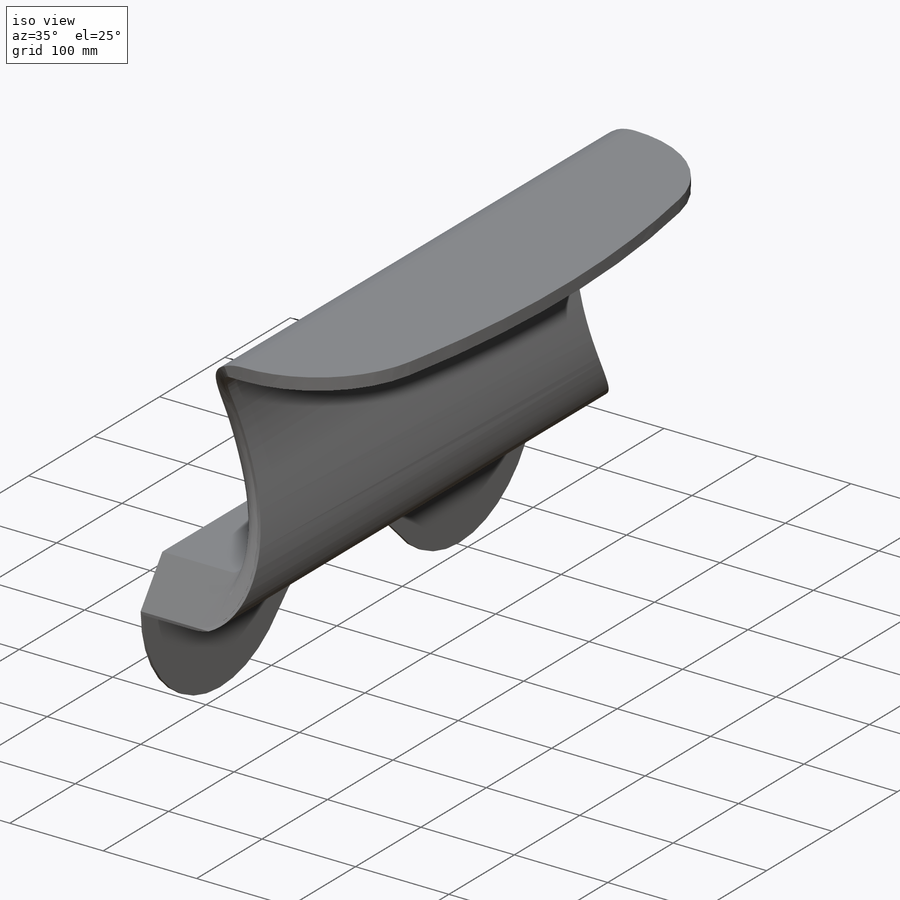
[diagram: iso view]
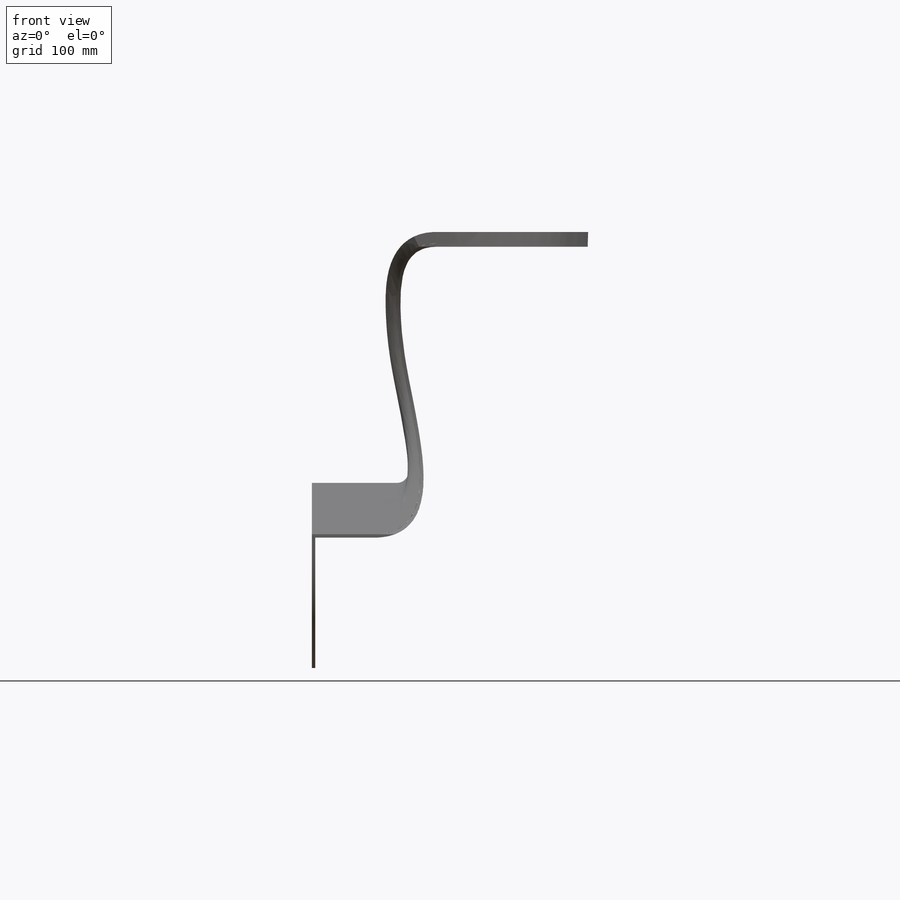
[diagram: front view]
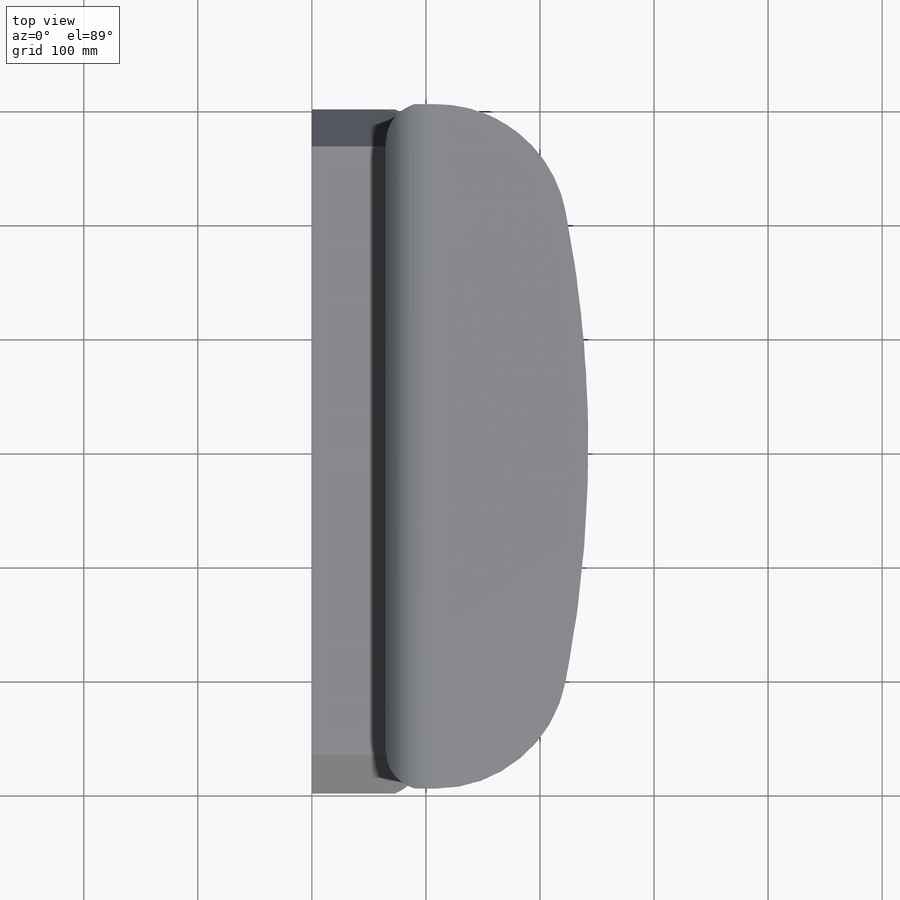
[diagram: top view]
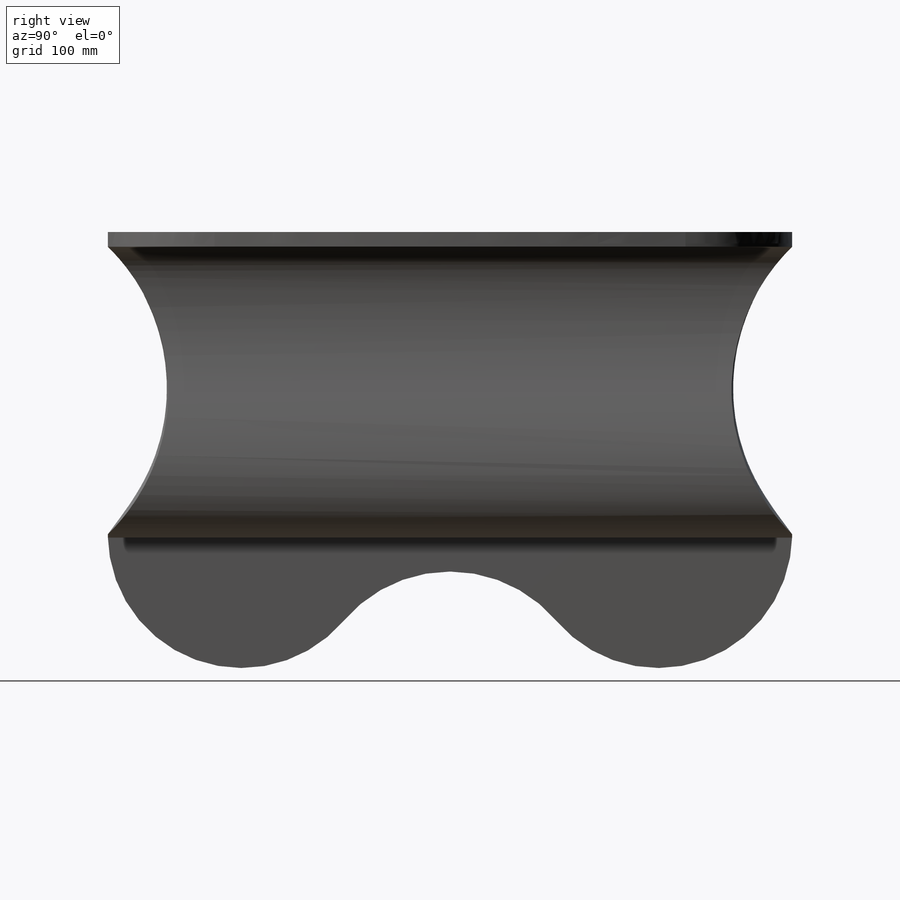
[diagram: right view]
SOLIDWORKS PART (.sldprt)
format: sldprt  version: not decoded by parser v0  size: 499,712 bytes
history: native  units: mm
features: sketch x7, plane x3, cut_extrude x3, fillet x2, material x1, delete_body x1 (+8 scaffold rows collapsed)
feature tree (25):
  scaffold x8  (default folders/planes/origin — collapsed)
  material  "Material <nicht festgelegt>"
  plane  "Ebene vorne"
  plane  "Ebene oben"
  plane  "Ebene rechts"
  sketch  "Skizze1"  dims[c1.D1=154.0mm c1.D2=55.0mm c1.D3=255.0mm c1.D4=150.0mm c2.D1=600.0mm c2.D5=3.0mm c2.D6=10.0mm c2.D7=5.0mm]
  sketch  "Skizze2"  dims[D1=0.0mm]
  cut_extrude  "Schnitt-Linear austragen2"  [1 undecoded]
  sketch  "Skizze3"
  cut_extrude  "Schnitt-Linear austragen3"  [1 undecoded]
  sketch  "Skizze5"  dims[D1=0.0mm]
  cut_extrude  "Schnitt-Linear austragen4"  Depth=10mm
  delete_body  "Körper-Löschen1"
  sketch  "3D-Skizze1"
  fillet  "Verrundung1"  Radius=10mm
  sketch  "Oberflächenausfüllung6"
  sketch  "Oberflächenausfüllung7"
  fillet  "Oberfläche-Zusammenfügen4"  [1 undecoded]
decode coverage: 5 of 13 modeling features carry decoded parameters
note: 3 parameter values undecoded
summary: no parameter record found for 3 features
note: suppression state not decoded; provenance and decode notes live in map.json
